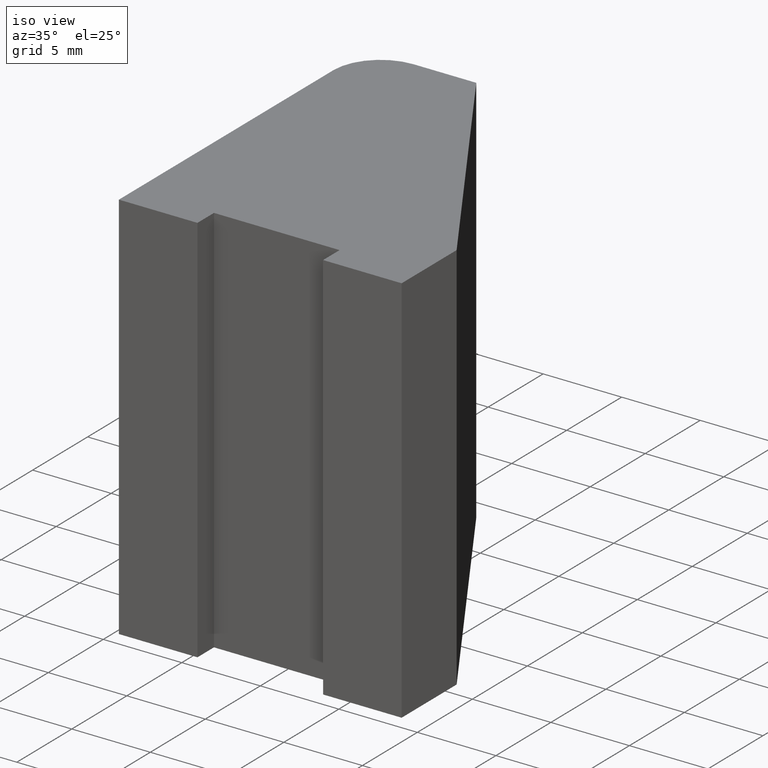
[diagram: clean part render]
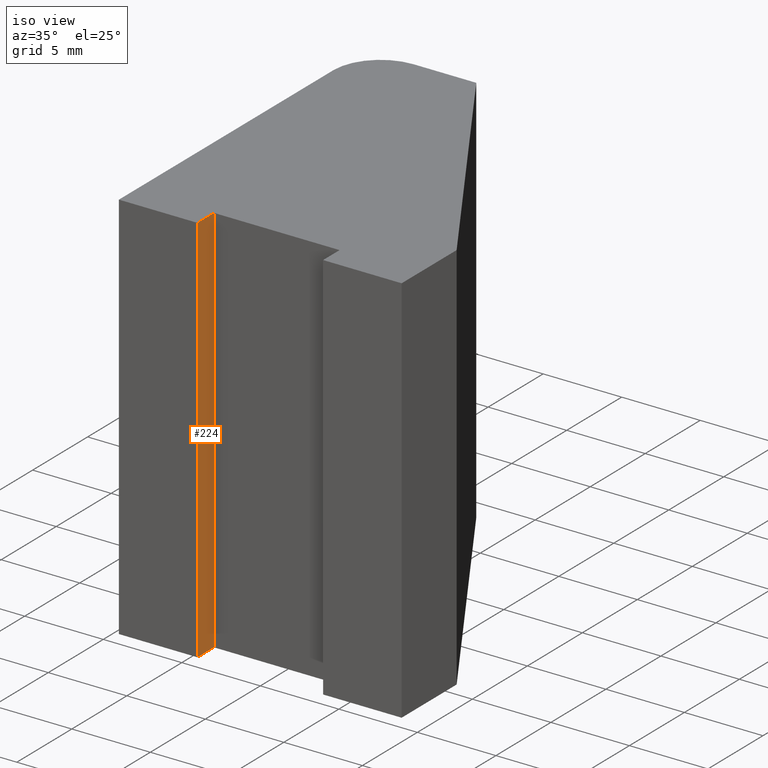
[diagram: same view with one face highlighted and labeled with its STEP entity id]
A machine part, iso view. The second image highlights one B-rep face of the part: STEP entity #224.
In plain terms, the highlighted planar face has unit normal (1, 0, 0).
Its self-contained STEP definition (entity closure, byte-faithful):
#21=FACE_OUTER_BOUND('',#33,.T.);
#33=EDGE_LOOP('',(#168,#169,#170,#171));
#48=LINE('',#337,#76);
#57=LINE('',#356,#85);
#58=LINE('',#359,#86);
#59=LINE('',#360,#87);
#76=VECTOR('',#275,10.);
#85=VECTOR('',#290,10.);
#86=VECTOR('',#293,10.);
#87=VECTOR('',#294,10.);
#104=VERTEX_POINT('',#334);
#105=VERTEX_POINT('',#336);
#112=VERTEX_POINT('',#354);
#113=VERTEX_POINT('',#358);
#124=EDGE_CURVE('',#105,#104,#48,.T.);
#134=EDGE_CURVE('',#112,#104,#57,.T.);
#135=EDGE_CURVE('',#112,#113,#58,.T.);
#136=EDGE_CURVE('',#113,#105,#59,.T.);
#168=ORIENTED_EDGE('',*,*,#135,.T.);
#169=ORIENTED_EDGE('',*,*,#136,.T.);
#170=ORIENTED_EDGE('',*,*,#124,.T.);
#171=ORIENTED_EDGE('',*,*,#134,.F.);
#213=PLANE('',#257);
#224=ADVANCED_FACE('',(#21),#213,.T.);
#257=AXIS2_PLACEMENT_3D('',#357,#291,#292);
#275=DIRECTION('',(0.,1.,0.));
#290=DIRECTION('',(0.,0.,-1.));
#291=DIRECTION('center_axis',(1.,0.,0.));
#292=DIRECTION('ref_axis',(0.,0.,-1.));
#293=DIRECTION('',(0.,-1.,0.));
#294=DIRECTION('',(0.,0.,-1.));
#334=CARTESIAN_POINT('',(-4.,1.5,-12.5));
#336=CARTESIAN_POINT('',(-4.,0.,-12.5));
#337=CARTESIAN_POINT('',(-4.,1.5,-12.5));
#354=CARTESIAN_POINT('',(-4.,1.5,12.5));
#356=CARTESIAN_POINT('',(-4.,1.5,0.));
#357=CARTESIAN_POINT('Origin',(-4.,1.5,0.));
#358=CARTESIAN_POINT('',(-4.,0.,12.5));
#359=CARTESIAN_POINT('',(-4.,1.5,12.5));
#360=CARTESIAN_POINT('',(-4.,0.,0.));